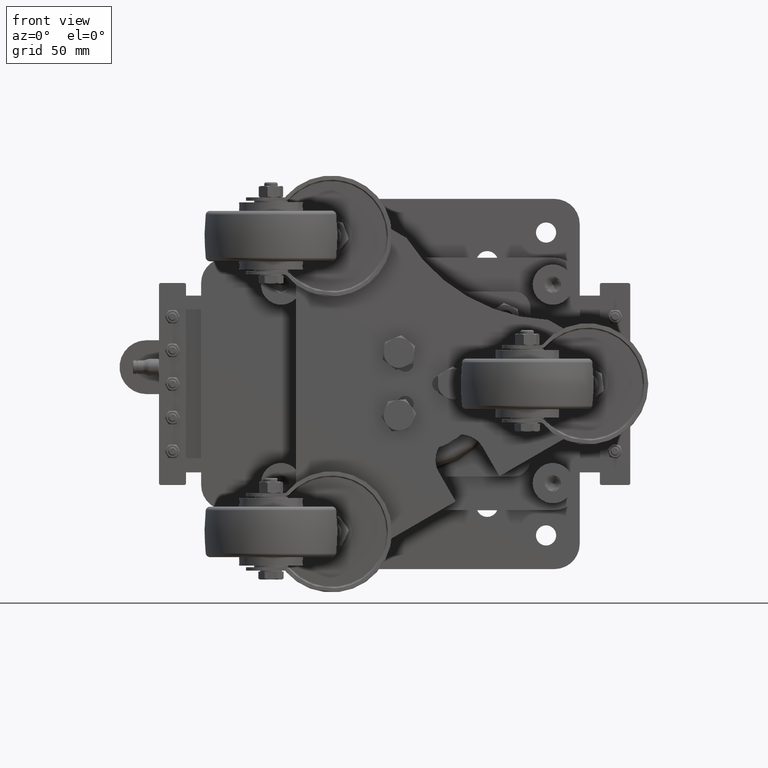
[diagram: clean part render]
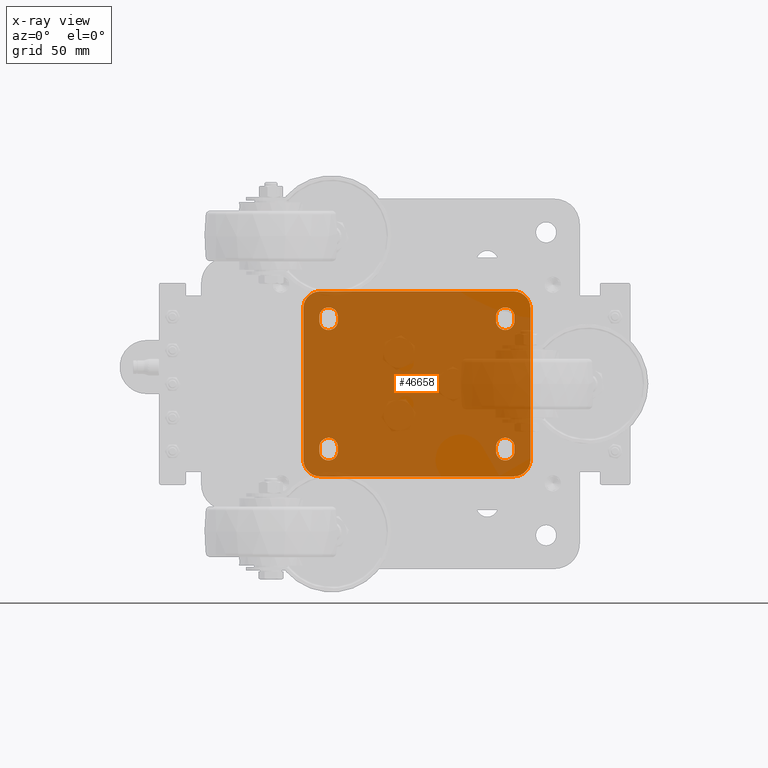
[diagram: x-ray — body ghosted, one internal face saturated and labeled with its STEP entity id]
A machine part, front view, then the same camera in x-ray: the body is ghosted and one INTERNAL B-rep face — a face not visible from any outside direction — is saturated and labeled: STEP entity #46658.
In plain terms, the highlighted planar face has unit normal (0, 1, 0).
Its self-contained STEP definition (entity closure, byte-faithful):
#31 = LINE ( 'NONE', #46403, #103322 ) ;
#1003 = VERTEX_POINT ( 'NONE', #116463 ) ;
#1618 = VECTOR ( 'NONE', #30403, 1000.000000000000000 ) ;
#1820 = AXIS2_PLACEMENT_3D ( 'NONE', #93017, #103051, #123180 ) ;
#3895 = VECTOR ( 'NONE', #66938, 1000.000000000000000 ) ;
#4112 = CARTESIAN_POINT ( 'NONE',  ( 46.99999999999997158, 0.0000000000000000000, -37.49999999999997158 ) ) ;
#4434 = EDGE_CURVE ( 'NONE', #87835, #65050, #75107, .T. ) ;
#4761 = DIRECTION ( 'NONE',  ( 0.0000000000000000000, 0.0000000000000000000, 1.000000000000000000 ) ) ;
#4909 = CARTESIAN_POINT ( 'NONE',  ( -67.50000000000001421, -0.0000000000000000000, 54.99999999999999289 ) ) ;
#5634 = DIRECTION ( 'NONE',  ( 1.000000000000000000, 0.0000000000000000000, 1.027984282060330011E-16 ) ) ;
#6278 = FACE_BOUND ( 'NONE', #48021, .T. ) ;
#6629 = CARTESIAN_POINT ( 'NONE',  ( 57.99999999999999289, 0.0000000000000000000, 37.49999999999997158 ) ) ;
#6683 = DIRECTION ( 'NONE',  ( 0.0000000000000000000, -1.000000000000000000, 0.0000000000000000000 ) ) ;
#6753 = VERTEX_POINT ( 'NONE', #110977 ) ;
#7368 = CIRCLE ( 'NONE', #1820, 5.499999999999998224 ) ;
#8707 = AXIS2_PLACEMENT_3D ( 'NONE', #64696, #44104, #4761 ) ;
#9432 = CARTESIAN_POINT ( 'NONE',  ( -52.49999999999997158, 0.0000000000000000000, -45.50000000000000000 ) ) ;
#10558 = EDGE_CURVE ( 'NONE', #61032, #29511, #127567, .T. ) ;
#11104 = VERTEX_POINT ( 'NONE', #60751 ) ;
#11251 = EDGE_CURVE ( 'NONE', #1003, #79298, #37869, .T. ) ;
#11520 = DIRECTION ( 'NONE',  ( 0.0000000000000000000, 0.0000000000000000000, 1.000000000000000000 ) ) ;
#12378 = DIRECTION ( 'NONE',  ( 0.0000000000000000000, -1.000000000000000000, 0.0000000000000000000 ) ) ;
#12532 = LINE ( 'NONE', #59651, #1618 ) ;
#12630 = EDGE_CURVE ( 'NONE', #67237, #119905, #70115, .T. ) ;
#12731 = ORIENTED_EDGE ( 'NONE', *, *, #12630, .T. ) ;
#13438 = CARTESIAN_POINT ( 'NONE',  ( -46.99999999999997158, 0.0000000000000000000, -40.00000000000000000 ) ) ;
#13488 = CARTESIAN_POINT ( 'NONE',  ( 47.00000000000000000, 0.0000000000000000000, 39.99999999999997158 ) ) ;
#13582 = VERTEX_POINT ( 'NONE', #27989 ) ;
#15552 = ORIENTED_EDGE ( 'NONE', *, *, #30830, .F. ) ;
#15872 = EDGE_CURVE ( 'NONE', #6753, #67237, #108475, .T. ) ;
#15887 = VERTEX_POINT ( 'NONE', #9432 ) ;
#16089 = ORIENTED_EDGE ( 'NONE', *, *, #19933, .T. ) ;
#16373 = CARTESIAN_POINT ( 'NONE',  ( 57.50000000000000000, 0.0000000000000000000, -54.99999999999999289 ) ) ;
#16630 = VECTOR ( 'NONE', #92706, 1000.000000000000000 ) ;
#17254 = EDGE_CURVE ( 'NONE', #81896, #34486, #31, .T. ) ;
#17418 = DIRECTION ( 'NONE',  ( 0.0000000000000000000, 0.0000000000000000000, 1.000000000000000000 ) ) ;
#17623 = CARTESIAN_POINT ( 'NONE',  ( 57.99999999999997158, 0.0000000000000000000, -39.99999999999997158 ) ) ;
#17779 = CARTESIAN_POINT ( 'NONE',  ( 57.50000000000000000, 0.0000000000000000000, -45.00000000000000000 ) ) ;
#18094 = CARTESIAN_POINT ( 'NONE',  ( -46.99999999999997158, 0.0000000000000000000, -37.50000000000000000 ) ) ;
#18209 = CARTESIAN_POINT ( 'NONE',  ( 52.49999999999997158, 0.0000000000000000000, -39.99999999999997158 ) ) ;
#18389 = CARTESIAN_POINT ( 'NONE',  ( -57.50000000000000711, -0.0000000000000000000, 54.99999999999999289 ) ) ;
#18506 = LINE ( 'NONE', #65558, #96851 ) ;
#19255 = LINE ( 'NONE', #121557, #97498 ) ;
#19533 = EDGE_CURVE ( 'NONE', #63047, #37348, #51906, .T. ) ;
#19933 = EDGE_CURVE ( 'NONE', #37348, #98886, #122885, .T. ) ;
#19986 = CARTESIAN_POINT ( 'NONE',  ( -57.50000000000002132, 0.0000000000000000000, -45.00000000000000711 ) ) ;
#20017 = ORIENTED_EDGE ( 'NONE', *, *, #42479, .T. ) ;
#20429 = DIRECTION ( 'NONE',  ( 0.0000000000000000000, 0.0000000000000000000, 1.000000000000000000 ) ) ;
#20651 = EDGE_CURVE ( 'NONE', #11104, #67093, #88007, .T. ) ;
#20952 = VERTEX_POINT ( 'NONE', #77765 ) ;
#22426 = LINE ( 'NONE', #4909, #111679 ) ;
#22615 = CIRCLE ( 'NONE', #121477, 5.499999999999998224 ) ;
#25031 = DIRECTION ( 'NONE',  ( 0.0000000000000000000, 0.0000000000000000000, -1.000000000000000000 ) ) ;
#25494 = CIRCLE ( 'NONE', #109914, 5.499999999999998224 ) ;
#25953 = VERTEX_POINT ( 'NONE', #18094 ) ;
#27989 = CARTESIAN_POINT ( 'NONE',  ( 57.99999999999999289, 0.0000000000000000000, 39.99999999999997158 ) ) ;
#28314 = ORIENTED_EDGE ( 'NONE', *, *, #19533, .T. ) ;
#28689 = EDGE_CURVE ( 'NONE', #34486, #15887, #79446, .T. ) ;
#28965 = EDGE_CURVE ( 'NONE', #20952, #81714, #54206, .T. ) ;
#29006 = ORIENTED_EDGE ( 'NONE', *, *, #70487, .T. ) ;
#29126 = DIRECTION ( 'NONE',  ( 0.0000000000000000000, 1.000000000000000000, 0.0000000000000000000 ) ) ;
#29511 = VERTEX_POINT ( 'NONE', #62269 ) ;
#30403 = DIRECTION ( 'NONE',  ( -0.0000000000000000000, 0.0000000000000000000, 1.000000000000000000 ) ) ;
#30563 = DIRECTION ( 'NONE',  ( 0.0000000000000000000, 0.0000000000000000000, -1.000000000000000000 ) ) ;
#30830 = EDGE_CURVE ( 'NONE', #11104, #79298, #32875, .T. ) ;
#31849 = DIRECTION ( 'NONE',  ( 0.0000000000000000000, 0.0000000000000000000, -1.000000000000000000 ) ) ;
#32057 = DIRECTION ( 'NONE',  ( -1.261617073437677999E-16, 0.0000000000000000000, 1.000000000000000000 ) ) ;
#32755 = EDGE_CURVE ( 'NONE', #51330, #114077, #22615, .T. ) ;
#32790 = CARTESIAN_POINT ( 'NONE',  ( -57.99999999999999289, -0.0000000000000000000, 37.50000000000000000 ) ) ;
#32875 = LINE ( 'NONE', #100755, #79858 ) ;
#33906 = DIRECTION ( 'NONE',  ( 0.0000000000000000000, -1.000000000000000000, 0.0000000000000000000 ) ) ;
#34395 = CARTESIAN_POINT ( 'NONE',  ( -67.50000000000001421, 0.0000000000000000000, -45.00000000000001421 ) ) ;
#34486 = VERTEX_POINT ( 'NONE', #87023 ) ;
#34626 = EDGE_LOOP ( 'NONE', ( #16089, #120443, #53358, #39897, #28314 ) ) ;
#34933 = ORIENTED_EDGE ( 'NONE', *, *, #50313, .T. ) ;
#35091 = LINE ( 'NONE', #13438, #55300 ) ;
#35755 = DIRECTION ( 'NONE',  ( 0.0000000000000000000, 0.0000000000000000000, 1.000000000000000000 ) ) ;
#37279 = VECTOR ( 'NONE', #32057, 1000.000000000000000 ) ;
#37348 = VERTEX_POINT ( 'NONE', #122887 ) ;
#37425 = VERTEX_POINT ( 'NONE', #44956 ) ;
#37869 = CIRCLE ( 'NONE', #50301, 10.00000000000000178 ) ;
#38571 = LINE ( 'NONE', #112801, #16630 ) ;
#38619 = ORIENTED_EDGE ( 'NONE', *, *, #4434, .T. ) ;
#38804 = CARTESIAN_POINT ( 'NONE',  ( 52.50000000000000000, 0.0000000000000000000, 37.49999999999997158 ) ) ;
#38966 = CARTESIAN_POINT ( 'NONE',  ( 67.49999999999998579, 0.0000000000000000000, 45.00000000000000711 ) ) ;
#39147 = CARTESIAN_POINT ( 'NONE',  ( 57.99999999999997158, 0.0000000000000000000, -37.49999999999997158 ) ) ;
#39897 = ORIENTED_EDGE ( 'NONE', *, *, #57961, .T. ) ;
#40808 = PLANE ( 'NONE',  #121634 ) ;
#41249 = CARTESIAN_POINT ( 'NONE',  ( 0.0000000000000000000, 0.0000000000000000000, 0.0000000000000000000 ) ) ;
#41759 = CARTESIAN_POINT ( 'NONE',  ( -57.99999999999999289, -0.0000000000000000000, 40.00000000000000000 ) ) ;
#41844 = CIRCLE ( 'NONE', #103745, 5.499999999999998224 ) ;
#42479 = EDGE_CURVE ( 'NONE', #37425, #25953, #35091, .T. ) ;
#43382 = CIRCLE ( 'NONE', #88832, 10.00000000000000178 ) ;
#44104 = DIRECTION ( 'NONE',  ( 0.0000000000000000000, 1.000000000000000000, 0.0000000000000000000 ) ) ;
#44956 = CARTESIAN_POINT ( 'NONE',  ( -46.99999999999997158, 0.0000000000000000000, -40.00000000000000000 ) ) ;
#45034 = CARTESIAN_POINT ( 'NONE',  ( 52.50000000000000000, 0.0000000000000000000, 37.49999999999997158 ) ) ;
#45040 = ORIENTED_EDGE ( 'NONE', *, *, #113583, .T. ) ;
#45343 = CARTESIAN_POINT ( 'NONE',  ( -52.49999999999997158, 0.0000000000000000000, -37.50000000000000000 ) ) ;
#46250 = DIRECTION ( 'NONE',  ( 0.0000000000000000000, -1.000000000000000000, 0.0000000000000000000 ) ) ;
#46403 = CARTESIAN_POINT ( 'NONE',  ( -57.99999999999997158, 0.0000000000000000000, -40.00000000000000000 ) ) ;
#46658 = ADVANCED_FACE ( 'NONE', ( #109730, #6278, #64124, #120497, #59534 ), #40808, .T. ) ;
#47339 = DIRECTION ( 'NONE',  ( 0.0000000000000000000, 0.0000000000000000000, -1.000000000000000000 ) ) ;
#47720 = DIRECTION ( 'NONE',  ( 0.0000000000000000000, 0.0000000000000000000, -1.000000000000000000 ) ) ;
#47932 = ORIENTED_EDGE ( 'NONE', *, *, #11251, .T. ) ;
#48021 = EDGE_LOOP ( 'NONE', ( #48254, #12731, #83417, #83827, #29006 ) ) ;
#48254 = ORIENTED_EDGE ( 'NONE', *, *, #15872, .T. ) ;
#48472 = ORIENTED_EDGE ( 'NONE', *, *, #10558, .T. ) ;
#48547 = CIRCLE ( 'NONE', #67489, 5.499999999999998224 ) ;
#50301 = AXIS2_PLACEMENT_3D ( 'NONE', #125506, #75178, #93594 ) ;
#50313 = EDGE_CURVE ( 'NONE', #102688, #98418, #43382, .T. ) ;
#51222 = DIRECTION ( 'NONE',  ( -1.000000000000000000, 0.0000000000000000000, -1.027984282060330011E-16 ) ) ;
#51330 = VERTEX_POINT ( 'NONE', #39147 ) ;
#51906 = LINE ( 'NONE', #120337, #84912 ) ;
#51949 = DIRECTION ( 'NONE',  ( 0.0000000000000000000, 0.0000000000000000000, -1.000000000000000000 ) ) ;
#53282 = ORIENTED_EDGE ( 'NONE', *, *, #82222, .F. ) ;
#53358 = ORIENTED_EDGE ( 'NONE', *, *, #54789, .T. ) ;
#54206 = CIRCLE ( 'NONE', #72265, 10.00000000000000178 ) ;
#54326 = ORIENTED_EDGE ( 'NONE', *, *, #129690, .T. ) ;
#54789 = EDGE_CURVE ( 'NONE', #62636, #13582, #12532, .T. ) ;
#55300 = VECTOR ( 'NONE', #83372, 1000.000000000000000 ) ;
#55969 = DIRECTION ( 'NONE',  ( 0.0000000000000000000, 0.0000000000000000000, -1.000000000000000000 ) ) ;
#56742 = CARTESIAN_POINT ( 'NONE',  ( -47.00000000000000000, -0.0000000000000000000, 40.00000000000000000 ) ) ;
#57961 = EDGE_CURVE ( 'NONE', #13582, #63047, #48547, .T. ) ;
#58552 = EDGE_CURVE ( 'NONE', #20952, #98418, #18506, .T. ) ;
#59137 = ORIENTED_EDGE ( 'NONE', *, *, #120720, .T. ) ;
#59534 = FACE_OUTER_BOUND ( 'NONE', #79004, .T. ) ;
#59550 = AXIS2_PLACEMENT_3D ( 'NONE', #82374, #12378, #115575 ) ;
#59651 = CARTESIAN_POINT ( 'NONE',  ( 57.99999999999999289, 0.0000000000000000000, 39.99999999999997158 ) ) ;
#60709 = LINE ( 'NONE', #81942, #37279 ) ;
#60751 = CARTESIAN_POINT ( 'NONE',  ( 57.49999999999998579, 0.0000000000000000000, 55.00000000000000711 ) ) ;
#60953 = ORIENTED_EDGE ( 'NONE', *, *, #58552, .F. ) ;
#61032 = VERTEX_POINT ( 'NONE', #80355 ) ;
#61154 = ORIENTED_EDGE ( 'NONE', *, *, #103904, .F. ) ;
#62269 = CARTESIAN_POINT ( 'NONE',  ( -47.00000000000000000, -0.0000000000000000000, 40.00000000000000000 ) ) ;
#62636 = VERTEX_POINT ( 'NONE', #6629 ) ;
#63047 = VERTEX_POINT ( 'NONE', #13488 ) ;
#63171 = DIRECTION ( 'NONE',  ( 0.0000000000000000000, 0.0000000000000000000, -1.000000000000000000 ) ) ;
#64124 = FACE_BOUND ( 'NONE', #129216, .T. ) ;
#64696 = CARTESIAN_POINT ( 'NONE',  ( 57.49999999999998579, 0.0000000000000000000, 45.00000000000000711 ) ) ;
#65050 = VERTEX_POINT ( 'NONE', #88959 ) ;
#65558 = CARTESIAN_POINT ( 'NONE',  ( 67.50000000000000000, 0.0000000000000000000, -54.99999999999999289 ) ) ;
#66938 = DIRECTION ( 'NONE',  ( -0.0000000000000000000, 0.0000000000000000000, 1.000000000000000000 ) ) ;
#67093 = VERTEX_POINT ( 'NONE', #38966 ) ;
#67237 = VERTEX_POINT ( 'NONE', #120363 ) ;
#67489 = AXIS2_PLACEMENT_3D ( 'NONE', #74887, #84064, #85398 ) ;
#68594 = ORIENTED_EDGE ( 'NONE', *, *, #108063, .T. ) ;
#70115 = CIRCLE ( 'NONE', #86854, 5.499999999999998224 ) ;
#70487 = EDGE_CURVE ( 'NONE', #114077, #6753, #19255, .T. ) ;
#72265 = AXIS2_PLACEMENT_3D ( 'NONE', #19986, #81665, #91317 ) ;
#73241 = CARTESIAN_POINT ( 'NONE',  ( 52.49999999999997158, 0.0000000000000000000, -37.49999999999997158 ) ) ;
#73979 = CARTESIAN_POINT ( 'NONE',  ( 52.50000000000000000, 0.0000000000000000000, 31.99999999999997158 ) ) ;
#74887 = CARTESIAN_POINT ( 'NONE',  ( 52.50000000000000000, 0.0000000000000000000, 39.99999999999997158 ) ) ;
#75107 = CIRCLE ( 'NONE', #90234, 5.499999999999998224 ) ;
#75178 = DIRECTION ( 'NONE',  ( 0.0000000000000000000, 1.000000000000000000, 0.0000000000000000000 ) ) ;
#77765 = CARTESIAN_POINT ( 'NONE',  ( -57.50000000000002132, 0.0000000000000000000, -55.00000000000000711 ) ) ;
#78018 = AXIS2_PLACEMENT_3D ( 'NONE', #97039, #46250, #17418 ) ;
#78387 = VERTEX_POINT ( 'NONE', #90805 ) ;
#79004 = EDGE_LOOP ( 'NONE', ( #60953, #107839, #53282, #47932, #15552, #111063, #61154, #34933 ) ) ;
#79008 = DIRECTION ( 'NONE',  ( 0.0000000000000000000, 0.0000000000000000000, -1.000000000000000000 ) ) ;
#79298 = VERTEX_POINT ( 'NONE', #18389 ) ;
#79446 = CIRCLE ( 'NONE', #59550, 5.499999999999998224 ) ;
#79858 = VECTOR ( 'NONE', #51222, 1000.000000000000000 ) ;
#80355 = CARTESIAN_POINT ( 'NONE',  ( -47.00000000000000000, -0.0000000000000000000, 37.50000000000000000 ) ) ;
#81122 = EDGE_CURVE ( 'NONE', #119905, #51330, #38571, .T. ) ;
#81665 = DIRECTION ( 'NONE',  ( 0.0000000000000000000, 1.000000000000000000, 0.0000000000000000000 ) ) ;
#81714 = VERTEX_POINT ( 'NONE', #34395 ) ;
#81896 = VERTEX_POINT ( 'NONE', #109548 ) ;
#81942 = CARTESIAN_POINT ( 'NONE',  ( 67.49999999999998579, 0.0000000000000000000, 55.00000000000000711 ) ) ;
#82222 = EDGE_CURVE ( 'NONE', #1003, #81714, #22426, .T. ) ;
#82266 = AXIS2_PLACEMENT_3D ( 'NONE', #38804, #119759, #20429 ) ;
#82374 = CARTESIAN_POINT ( 'NONE',  ( -52.49999999999997158, 0.0000000000000000000, -40.00000000000000000 ) ) ;
#82863 = DIRECTION ( 'NONE',  ( 0.0000000000000000000, 0.0000000000000000000, -1.000000000000000000 ) ) ;
#83372 = DIRECTION ( 'NONE',  ( 0.0000000000000000000, 0.0000000000000000000, 1.000000000000000000 ) ) ;
#83417 = ORIENTED_EDGE ( 'NONE', *, *, #81122, .T. ) ;
#83827 = ORIENTED_EDGE ( 'NONE', *, *, #32755, .T. ) ;
#83944 = ORIENTED_EDGE ( 'NONE', *, *, #95626, .T. ) ;
#84064 = DIRECTION ( 'NONE',  ( 0.0000000000000000000, -1.000000000000000000, 0.0000000000000000000 ) ) ;
#84912 = VECTOR ( 'NONE', #51949, 1000.000000000000000 ) ;
#85398 = DIRECTION ( 'NONE',  ( 0.0000000000000000000, 0.0000000000000000000, 1.000000000000000000 ) ) ;
#85482 = EDGE_LOOP ( 'NONE', ( #59137, #68594, #38619, #83944, #48472 ) ) ;
#86854 = AXIS2_PLACEMENT_3D ( 'NONE', #90095, #129085, #30563 ) ;
#87023 = CARTESIAN_POINT ( 'NONE',  ( -57.99999999999997158, 0.0000000000000000000, -40.00000000000000000 ) ) ;
#87783 = DIRECTION ( 'NONE',  ( 0.0000000000000000000, 0.0000000000000000000, 1.000000000000000000 ) ) ;
#87835 = VERTEX_POINT ( 'NONE', #32790 ) ;
#88007 = CIRCLE ( 'NONE', #8707, 10.00000000000000178 ) ;
#88212 = DIRECTION ( 'NONE',  ( 0.0000000000000000000, -1.000000000000000000, 0.0000000000000000000 ) ) ;
#88832 = AXIS2_PLACEMENT_3D ( 'NONE', #17779, #29126, #87783 ) ;
#88959 = CARTESIAN_POINT ( 'NONE',  ( -52.50000000000000000, 0.0000000000000000000, 32.00000000000000000 ) ) ;
#90095 = CARTESIAN_POINT ( 'NONE',  ( 52.49999999999997158, 0.0000000000000000000, -39.99999999999997158 ) ) ;
#90234 = AXIS2_PLACEMENT_3D ( 'NONE', #96830, #106510, #47339 ) ;
#90805 = CARTESIAN_POINT ( 'NONE',  ( -57.99999999999999289, -0.0000000000000000000, 40.00000000000000000 ) ) ;
#91317 = DIRECTION ( 'NONE',  ( 0.0000000000000000000, 0.0000000000000000000, 1.000000000000000000 ) ) ;
#92706 = DIRECTION ( 'NONE',  ( 0.0000000000000000000, 0.0000000000000000000, 1.000000000000000000 ) ) ;
#93017 = CARTESIAN_POINT ( 'NONE',  ( -52.50000000000000000, -0.0000000000000000000, 37.50000000000000000 ) ) ;
#93594 = DIRECTION ( 'NONE',  ( 0.0000000000000000000, 0.0000000000000000000, 1.000000000000000000 ) ) ;
#95239 = DIRECTION ( 'NONE',  ( 0.0000000000000000000, 0.0000000000000000000, 1.000000000000000000 ) ) ;
#95268 = DIRECTION ( 'NONE',  ( 0.0000000000000000000, -1.000000000000000000, 0.0000000000000000000 ) ) ;
#95626 = EDGE_CURVE ( 'NONE', #65050, #61032, #7368, .T. ) ;
#96830 = CARTESIAN_POINT ( 'NONE',  ( -52.50000000000000000, -0.0000000000000000000, 37.50000000000000000 ) ) ;
#96851 = VECTOR ( 'NONE', #5634, 1000.000000000000000 ) ;
#97039 = CARTESIAN_POINT ( 'NONE',  ( -52.49999999999997158, 0.0000000000000000000, -40.00000000000000000 ) ) ;
#97498 = VECTOR ( 'NONE', #31849, 1000.000000000000000 ) ;
#98418 = VERTEX_POINT ( 'NONE', #16373 ) ;
#98886 = VERTEX_POINT ( 'NONE', #73979 ) ;
#100755 = CARTESIAN_POINT ( 'NONE',  ( 67.49999999999998579, 0.0000000000000000000, 55.00000000000000711 ) ) ;
#100947 = DIRECTION ( 'NONE',  ( 0.0000000000000000000, -1.000000000000000000, 0.0000000000000000000 ) ) ;
#102688 = VERTEX_POINT ( 'NONE', #107052 ) ;
#103051 = DIRECTION ( 'NONE',  ( 0.0000000000000000000, -1.000000000000000000, 0.0000000000000000000 ) ) ;
#103322 = VECTOR ( 'NONE', #55969, 1000.000000000000000 ) ;
#103745 = AXIS2_PLACEMENT_3D ( 'NONE', #45343, #95268, #35755 ) ;
#103904 = EDGE_CURVE ( 'NONE', #102688, #67093, #60709, .T. ) ;
#104328 = AXIS2_PLACEMENT_3D ( 'NONE', #18209, #88212, #79008 ) ;
#106083 = VECTOR ( 'NONE', #63171, 1000.000000000000000 ) ;
#106510 = DIRECTION ( 'NONE',  ( 0.0000000000000000000, -1.000000000000000000, 0.0000000000000000000 ) ) ;
#107052 = CARTESIAN_POINT ( 'NONE',  ( 67.50000000000000000, 0.0000000000000000000, -45.00000000000000000 ) ) ;
#107839 = ORIENTED_EDGE ( 'NONE', *, *, #28965, .T. ) ;
#108063 = EDGE_CURVE ( 'NONE', #78387, #87835, #128026, .T. ) ;
#108475 = CIRCLE ( 'NONE', #104328, 5.499999999999998224 ) ;
#109548 = CARTESIAN_POINT ( 'NONE',  ( -57.99999999999997158, 0.0000000000000000000, -37.50000000000000000 ) ) ;
#109730 = FACE_BOUND ( 'NONE', #85482, .T. ) ;
#109798 = EDGE_CURVE ( 'NONE', #98886, #62636, #25494, .T. ) ;
#109914 = AXIS2_PLACEMENT_3D ( 'NONE', #45034, #100947, #95239 ) ;
#110977 = CARTESIAN_POINT ( 'NONE',  ( 46.99999999999997158, 0.0000000000000000000, -39.99999999999997158 ) ) ;
#111063 = ORIENTED_EDGE ( 'NONE', *, *, #20651, .T. ) ;
#111679 = VECTOR ( 'NONE', #25031, 1000.000000000000000 ) ;
#112685 = CIRCLE ( 'NONE', #124760, 5.499999999999998224 ) ;
#112801 = CARTESIAN_POINT ( 'NONE',  ( 57.99999999999997158, 0.0000000000000000000, -39.99999999999997158 ) ) ;
#113583 = EDGE_CURVE ( 'NONE', #25953, #81896, #41844, .T. ) ;
#114077 = VERTEX_POINT ( 'NONE', #4112 ) ;
#115575 = DIRECTION ( 'NONE',  ( 0.0000000000000000000, 0.0000000000000000000, 1.000000000000000000 ) ) ;
#116463 = CARTESIAN_POINT ( 'NONE',  ( -67.50000000000001421, -0.0000000000000000000, 44.99999999999999289 ) ) ;
#117044 = ORIENTED_EDGE ( 'NONE', *, *, #28689, .T. ) ;
#119759 = DIRECTION ( 'NONE',  ( 0.0000000000000000000, -1.000000000000000000, 0.0000000000000000000 ) ) ;
#119905 = VERTEX_POINT ( 'NONE', #17623 ) ;
#120337 = CARTESIAN_POINT ( 'NONE',  ( 47.00000000000000000, 0.0000000000000000000, 39.99999999999997158 ) ) ;
#120363 = CARTESIAN_POINT ( 'NONE',  ( 52.49999999999997158, 0.0000000000000000000, -45.49999999999997158 ) ) ;
#120443 = ORIENTED_EDGE ( 'NONE', *, *, #109798, .T. ) ;
#120497 = FACE_BOUND ( 'NONE', #34626, .T. ) ;
#120720 = EDGE_CURVE ( 'NONE', #29511, #78387, #112685, .T. ) ;
#121328 = DIRECTION ( 'NONE',  ( 0.0000000000000000000, 1.000000000000000000, 0.0000000000000000000 ) ) ;
#121477 = AXIS2_PLACEMENT_3D ( 'NONE', #73241, #33906, #82863 ) ;
#121557 = CARTESIAN_POINT ( 'NONE',  ( 46.99999999999997158, 0.0000000000000000000, -39.99999999999997158 ) ) ;
#121634 = AXIS2_PLACEMENT_3D ( 'NONE', #41249, #121328, #11520 ) ;
#122885 = CIRCLE ( 'NONE', #82266, 5.499999999999998224 ) ;
#122887 = CARTESIAN_POINT ( 'NONE',  ( 47.00000000000000000, 0.0000000000000000000, 37.49999999999997158 ) ) ;
#123090 = CIRCLE ( 'NONE', #78018, 5.499999999999998224 ) ;
#123180 = DIRECTION ( 'NONE',  ( 0.0000000000000000000, 0.0000000000000000000, -1.000000000000000000 ) ) ;
#123635 = ORIENTED_EDGE ( 'NONE', *, *, #17254, .T. ) ;
#124760 = AXIS2_PLACEMENT_3D ( 'NONE', #126972, #6683, #47720 ) ;
#125506 = CARTESIAN_POINT ( 'NONE',  ( -57.50000000000001421, -0.0000000000000000000, 44.99999999999999289 ) ) ;
#126972 = CARTESIAN_POINT ( 'NONE',  ( -52.50000000000000000, -0.0000000000000000000, 40.00000000000000000 ) ) ;
#127567 = LINE ( 'NONE', #56742, #3895 ) ;
#128026 = LINE ( 'NONE', #41759, #106083 ) ;
#129085 = DIRECTION ( 'NONE',  ( 0.0000000000000000000, -1.000000000000000000, 0.0000000000000000000 ) ) ;
#129216 = EDGE_LOOP ( 'NONE', ( #45040, #123635, #117044, #54326, #20017 ) ) ;
#129690 = EDGE_CURVE ( 'NONE', #15887, #37425, #123090, .T. ) ;